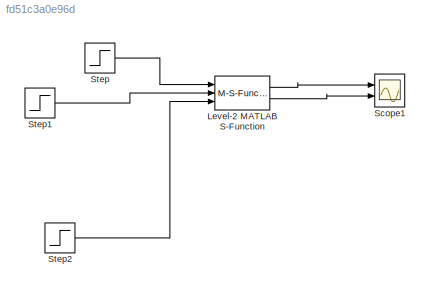
MODEL slx_fd51c3a0e96d
KIND model
CONFIG AbsTol = auto
CONFIG EnableMultiTasking = off
CONFIG FixedStep = auto
CONFIG MaxStep = auto
CONFIG MinStep = auto
CONFIG RelTol = 1e-3
CONFIG SampleTimeConstraint = Unconstrained
CONFIG Solver = VariableStepAuto
CONFIG SolverName = VariableStepAuto
CONFIG StartTime = 0.0
CONFIG StopTime = 800.0
BLOCK [M-S-Function] Level-2 MATLAB S-Function
  FunctionName = bioreactor
  Parameters = [0.4225;0.0415;2.0535;0.0234]
  Ports = [3, 2]
BLOCK [Scope] Scope1
  Floating = off
  NumInputPorts = 2
  Ports = [2]
  ScopeSpecificationString = Simulink.scopes.TimeScopeBlockCfg('CurrentConfiguration', extmgr.ConfigurationSet(extmgr.Configuration('Core','General UI',true),extmgr.Configuration('Core','Source UI',true),extmgr.Configuration('Sources','WiredSimulink',true,'DataLoggingVariableName','ScopeData1'),extmgr.Configuration('Visuals','Time Domain',true,'SerializedDisplays',{struct('MinYLimReal','-0.45452','MaxYLimReal','4.09609','YLab...<+1787ch>
BLOCK [Step] Step
  After = 3.3
  SampleTime = 0
  Time = 0
BLOCK [Step] Step1
  After = 0.205
  Before = 0.205
  SampleTime = 0
  Time = 0
BLOCK [Step] Step2
  After = 0.55
  Before = 0.55
  SampleTime = 0
  Time = 0
LINE Level-2 MATLAB S-Function:1 -> Scope1:1
LINE Level-2 MATLAB S-Function:2 -> Scope1:2
LINE Step1:1 -> Level-2 MATLAB S-Function:2
LINE Step2:1 -> Level-2 MATLAB S-Function:3
LINE Step:1 -> Level-2 MATLAB S-Function:1
